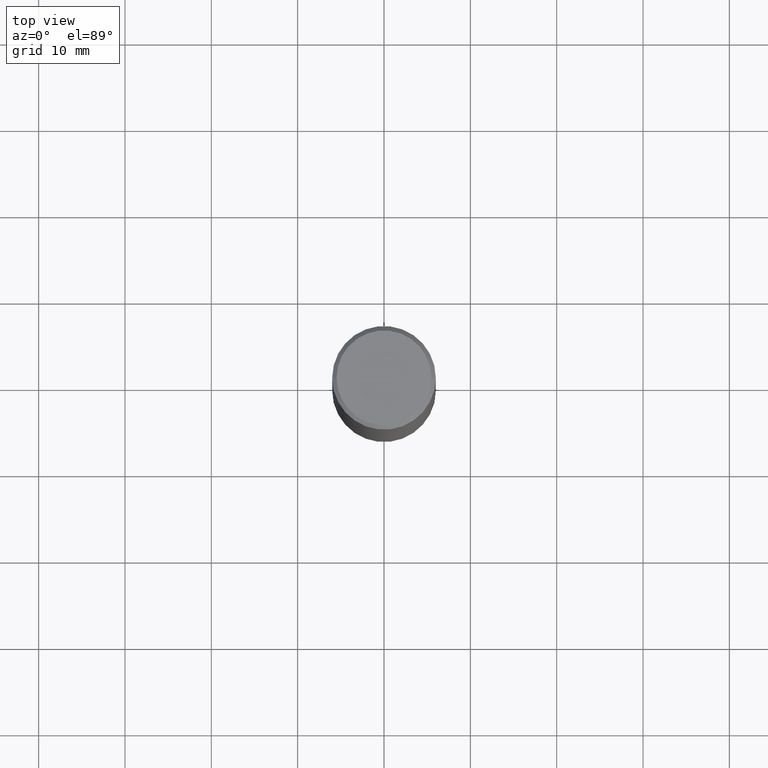
[diagram: clean part render]
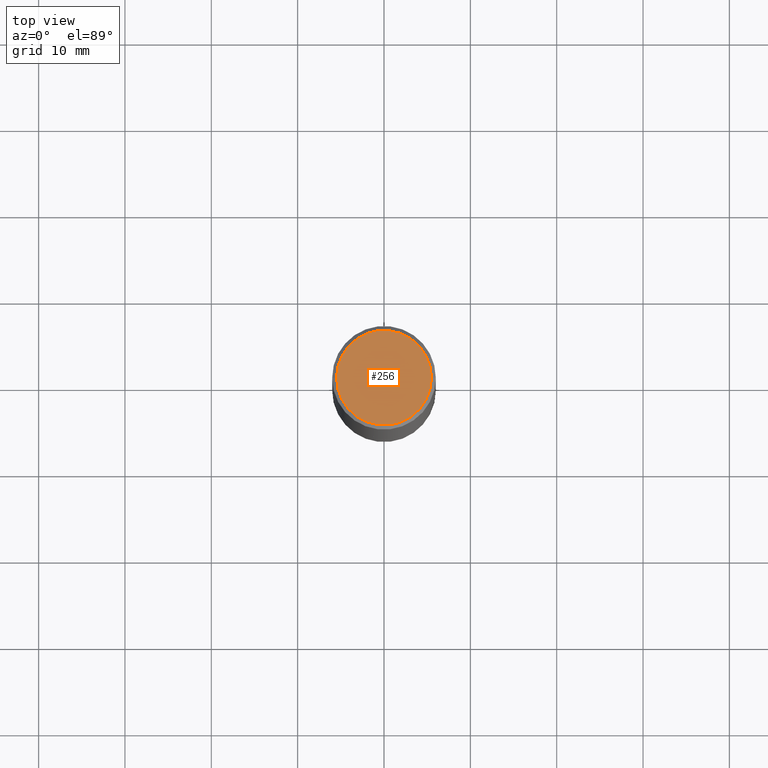
[diagram: same view with one face highlighted and labeled with its STEP entity id]
A machine part, top view. The second image highlights one B-rep face of the part: STEP entity #256.
In plain terms, the highlighted planar face has unit normal (0, -0, -1).
Its self-contained STEP definition (entity closure, byte-faithful):
#13 = CARTESIAN_POINT ( 'NONE',  ( 0.2161999999999996980, -1.586759460484350016E-15, 4.268512490111238857E-18 ) ) ;
#24 = AXIS2_PLACEMENT_3D ( 'NONE', #331, #68, #266 ) ;
#37 = AXIS2_PLACEMENT_3D ( 'NONE', #219, #194, #287 ) ;
#52 = EDGE_CURVE ( 'NONE', #79, #175, #236, .T. ) ;
#57 = ORIENTED_EDGE ( 'NONE', *, *, #52, .T. ) ;
#68 = DIRECTION ( 'NONE',  ( -2.445468806185136597E-29, 3.491481338843145583E-15, 1.000000000000000000 ) ) ;
#69 = CARTESIAN_POINT ( 'NONE',  ( 1.509716530915768548E-15, 0.2161999999999996980, -7.527240092128368218E-16 ) ) ;
#79 = VERTEX_POINT ( 'NONE', #13 ) ;
#104 = DIRECTION ( 'NONE',  ( 2.438088387897960049E-29, -3.491481338843145188E-15, -1.000000000000000000 ) ) ;
#129 = DIRECTION ( 'NONE',  ( -1.000000000000000000, 6.982962677686265922E-15, -4.876176775795935793E-29 ) ) ;
#132 = CIRCLE ( 'NONE', #24, 0.2161999999999996980 ) ;
#172 = ORIENTED_EDGE ( 'NONE', *, *, #261, .T. ) ;
#175 = VERTEX_POINT ( 'NONE', #293 ) ;
#194 = DIRECTION ( 'NONE',  ( -2.445468806185136597E-29, 3.491481338843145583E-15, 1.000000000000000000 ) ) ;
#219 = CARTESIAN_POINT ( 'NONE',  ( -1.043851414335219820E-46, 1.490343170380447200E-32, 4.268512490100411279E-18 ) ) ;
#222 = EDGE_LOOP ( 'NONE', ( #172, #57 ) ) ;
#235 = PLANE ( 'NONE',  #237 ) ;
#236 = CIRCLE ( 'NONE', #37, 0.2161999999999996980 ) ;
#237 = AXIS2_PLACEMENT_3D ( 'NONE', #69, #104, #129 ) ;
#256 = ADVANCED_FACE ( 'NONE', ( #357 ), #235, .F. ) ;
#261 = EDGE_CURVE ( 'NONE', #175, #79, #132, .T. ) ;
#266 = DIRECTION ( 'NONE',  ( 1.000000000000000000, -6.982962677686266711E-15, 4.876217060660162401E-29 ) ) ;
#287 = DIRECTION ( 'NONE',  ( 1.000000000000000000, -6.982962677686266711E-15, 4.876217060660162401E-29 ) ) ;
#293 = CARTESIAN_POINT ( 'NONE',  ( -0.2161999999999996980, 1.544631344304200000E-15, 4.268512490089730842E-18 ) ) ;
#331 = CARTESIAN_POINT ( 'NONE',  ( -1.043851414335219820E-46, 1.490343170380447200E-32, 4.268512490100411279E-18 ) ) ;
#357 = FACE_OUTER_BOUND ( 'NONE', #222, .T. ) ;